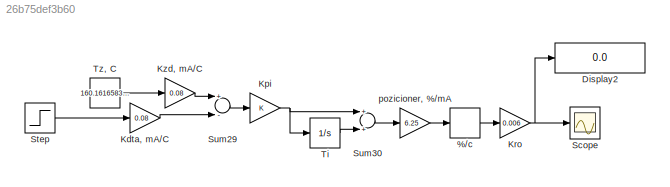
MODEL slx_26b75def3b60
KIND model
CONFIG AbsTol = auto
CONFIG EnableMultiTasking = off
CONFIG FixedStep = 0.1
CONFIG MaxStep = auto
CONFIG MinStep = auto
CONFIG RelTol = 1e-3
CONFIG SampleTimeConstraint = Unconstrained
CONFIG Solver = ode1
CONFIG SolverName = ode1
CONFIG StartTime = 0.0
CONFIG StopTime = 300000.0
BLOCK [RateLimiter] %//c
  FallingSlewLimit = -5
  RisingSlewLimit = 5
  SampleTimeMode = inherited
BLOCK [Display] Display2
  Decimation = 1
  Ports = [1]
BLOCK [Gain] Kdta, mA//C
  Gain = 0.08
  OutDataTypeStr = Inherit: Inherit via internal rule
  ParamDataTypeStr = Inherit: Inherit via internal rule
  SaturateOnIntegerOverflow = off
BLOCK [Gain] Kpi
  OutDataTypeStr = Inherit: Inherit via internal rule
  ParamDataTypeStr = Inherit: Inherit via internal rule
  SaturateOnIntegerOverflow = off
BLOCK [Gain] Kro
  Gain = 0.006
  OutDataTypeStr = Inherit: Inherit via internal rule
  ParamDataTypeStr = Inherit: Inherit via internal rule
  SaturateOnIntegerOverflow = off
BLOCK [Gain] Kzd, mA//C
  Gain = 0.08
  OutDataTypeStr = Inherit: Inherit via internal rule
  ParamDataTypeStr = Inherit: Inherit via internal rule
  SaturateOnIntegerOverflow = off
BLOCK [Scope] Scope
  Floating = off
  NumInputPorts = 1
  Ports = [1]
  ScopeSpecificationString = Simulink.scopes.TimeScopeBlockCfg('CurrentConfiguration', extmgr.ConfigurationSet(extmgr.Configuration('Core','General UI',true),extmgr.Configuration('Core','Source UI',true),extmgr.Configuration('Sources','WiredSimulink',true),extmgr.Configuration('Visuals','Time Domain',true,'SerializedDisplays',{struct('MinYLimReal','282.30579','MaxYLimReal','464.05277','YLabelReal','','MinYLimMag','282.30579',...<+1406ch>
BLOCK [Step] Step
  After = 160
  SampleTime = 0
BLOCK [Sum] Sum29
  InputSameDT = off
  Inputs = +-
  OutDataTypeStr = Inherit: Inherit via internal rule
  Ports = [2, 1]
  SaturateOnIntegerOverflow = off
BLOCK [Sum] Sum30
  InputSameDT = off
  OutDataTypeStr = Inherit: Inherit via internal rule
  Ports = [2, 1]
  SaturateOnIntegerOverflow = off
BLOCK [Integrator] Ti
  InitialCondition = 8000
  LowerSaturationLimit = 6012
  Ports = [1, 1]
  UpperSaturationLimit = 8012
BLOCK [Constant] Tz, C
  Value = 160.1616583845354
BLOCK [Gain] pozicioner, %//mA
  Gain = 6.25
  OutDataTypeStr = Inherit: Inherit via internal rule
  ParamDataTypeStr = Inherit: Inherit via internal rule
  SaturateOnIntegerOverflow = off
LINE %//c:1 -> Kro:1
LINE Kdta, mA//C:1 -> Sum29:2
NET Kpi:1 -> Sum30:1, Ti:1
NET Kro:1 -> Display2:1, Scope:1
LINE Kzd, mA//C:1 -> Sum29:1
LINE Step:1 -> Kdta, mA//C:1
LINE Sum29:1 -> Kpi:1
LINE Sum30:1 -> pozicioner, %//mA:1
LINE Ti:1 -> Sum30:2
LINE Tz, C:1 -> Kzd, mA//C:1
LINE pozicioner, %//mA:1 -> %//c:1
note: NET lines group one-source signal fan-out (src -> all destinations, sorted); 1:1 wires keep LINE
